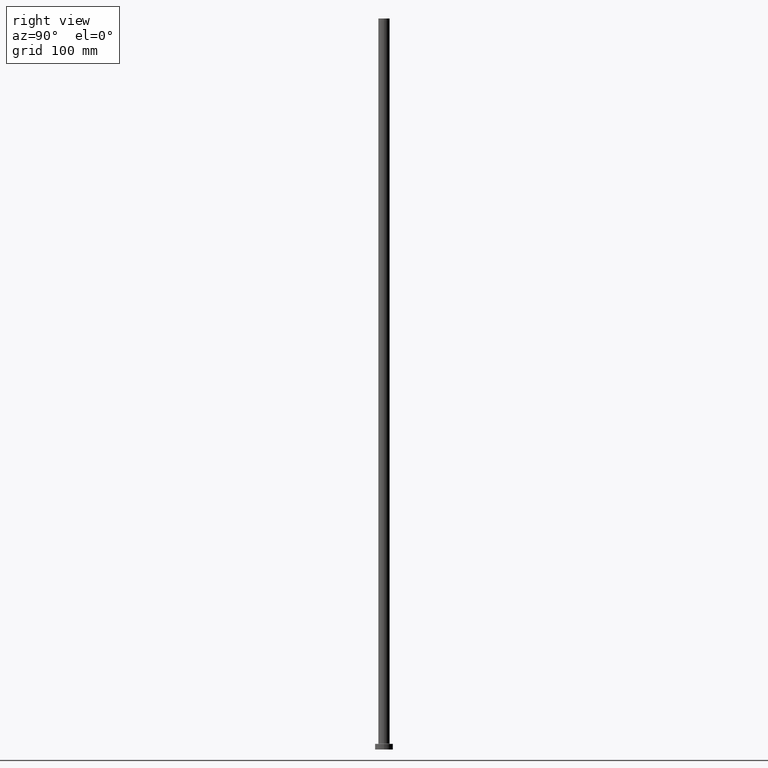
[diagram: clean part render]
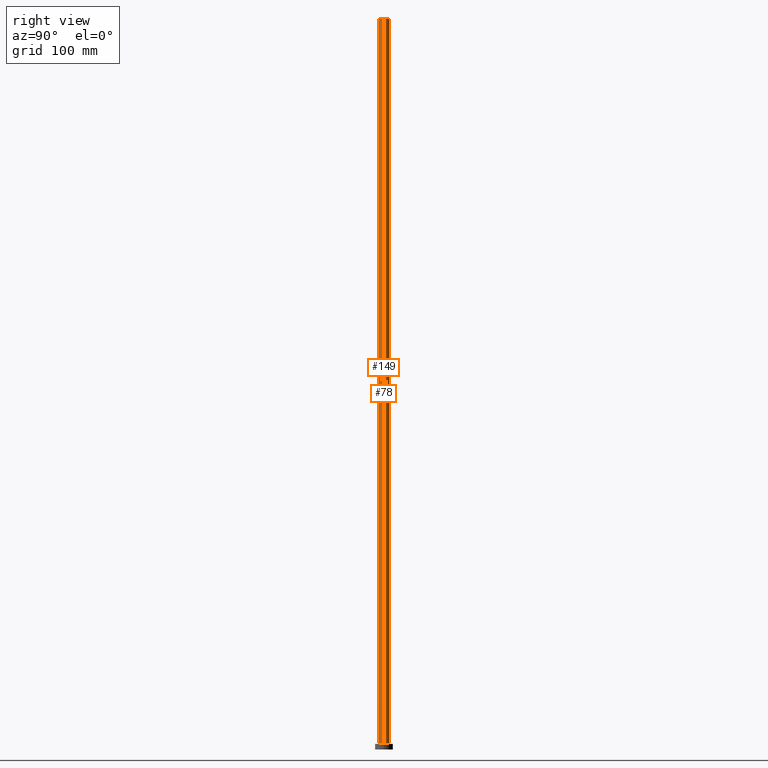
[diagram: same view with one multi-face feature highlighted, each face labeled with its STEP entity id]
A machine part, right view. The highlighted faces form ONE feature: a constant-radius fillet chain: 2 tangent blend faces with common blend radius 5 mm. The faces share edges in the B-rep.
Their STEP definitions:
[1] entity #149 (Cylinder):
#11 = EDGE_CURVE ( 'NONE', #175, #40, #57, .T. ) ;
#16 = CARTESIAN_POINT ( 'NONE',  ( 0.000000000000000000, 0.000000000000000000, 5.499999999999949374 ) ) ;
#17 = AXIS2_PLACEMENT_3D ( 'NONE', #112, #296, #397 ) ;
#40 = VERTEX_POINT ( 'NONE', #409 ) ;
#57 = CIRCLE ( 'NONE', #17, 5.000000000000000000 ) ;
#62 = LINE ( 'NONE', #346, #419 ) ;
#84 = VERTEX_POINT ( 'NONE', #97 ) ;
#96 = DIRECTION ( 'NONE',  ( -0.000000000000000000, -0.000000000000000000, -1.000000000000000000 ) ) ;
#97 = CARTESIAN_POINT ( 'NONE',  ( 5.000000000000000000, 6.123233995736765296E-16, 5.499999999999949374 ) ) ;
#105 = VECTOR ( 'NONE', #96, 1000.000000000000000 ) ;
#112 = CARTESIAN_POINT ( 'NONE',  ( 0.000000000000000000, 0.000000000000000000, 650.0000000000000000 ) ) ;
#114 = ORIENTED_EDGE ( 'NONE', *, *, #392, .F. ) ;
#126 = DIRECTION ( 'NONE',  ( -1.000000000000000000, 0.000000000000000000, 0.000000000000000000 ) ) ;
#127 = FACE_OUTER_BOUND ( 'NONE', #255, .T. ) ;
#149 = ADVANCED_FACE ( 'NONE', ( #127 ), #194, .T. ) ;
#162 = DIRECTION ( 'NONE',  ( 0.000000000000000000, 0.000000000000000000, 1.000000000000000000 ) ) ;
#167 = DIRECTION ( 'NONE',  ( 1.000000000000000000, 0.000000000000000000, 0.000000000000000000 ) ) ;
#175 = VERTEX_POINT ( 'NONE', #301 ) ;
#176 = EDGE_CURVE ( 'NONE', #175, #309, #269, .T. ) ;
#194 = CYLINDRICAL_SURFACE ( 'NONE', #202, 5.000000000000000000 ) ;
#202 = AXIS2_PLACEMENT_3D ( 'NONE', #411, #446, #126 ) ;
#248 = ORIENTED_EDGE ( 'NONE', *, *, #11, .F. ) ;
#255 = EDGE_LOOP ( 'NONE', ( #114, #248, #428, #355 ) ) ;
#269 = LINE ( 'NONE', #412, #105 ) ;
#296 = DIRECTION ( 'NONE',  ( 0.000000000000000000, 0.000000000000000000, 1.000000000000000000 ) ) ;
#301 = CARTESIAN_POINT ( 'NONE',  ( -5.000000000000000000, 0.000000000000000000, 650.0000000000000000 ) ) ;
#309 = VERTEX_POINT ( 'NONE', #410 ) ;
#324 = EDGE_CURVE ( 'NONE', #309, #84, #345, .T. ) ;
#330 = AXIS2_PLACEMENT_3D ( 'NONE', #16, #162, #167 ) ;
#345 = CIRCLE ( 'NONE', #330, 5.000000000000000000 ) ;
#346 = CARTESIAN_POINT ( 'NONE',  ( 5.000000000000000000, 6.123233995736765296E-16, 650.0000000000000000 ) ) ;
#355 = ORIENTED_EDGE ( 'NONE', *, *, #324, .T. ) ;
#386 = DIRECTION ( 'NONE',  ( -0.000000000000000000, -0.000000000000000000, -1.000000000000000000 ) ) ;
#392 = EDGE_CURVE ( 'NONE', #40, #84, #62, .T. ) ;
#397 = DIRECTION ( 'NONE',  ( 1.000000000000000000, 0.000000000000000000, 0.000000000000000000 ) ) ;
#409 = CARTESIAN_POINT ( 'NONE',  ( 5.000000000000000000, 6.123233995736765296E-16, 650.0000000000000000 ) ) ;
#410 = CARTESIAN_POINT ( 'NONE',  ( -5.000000000000000000, 0.000000000000000000, 5.499999999999949374 ) ) ;
#411 = CARTESIAN_POINT ( 'NONE',  ( 0.000000000000000000, 0.000000000000000000, 650.0000000000000000 ) ) ;
#412 = CARTESIAN_POINT ( 'NONE',  ( -5.000000000000000000, 0.000000000000000000, 650.0000000000000000 ) ) ;
#419 = VECTOR ( 'NONE', #386, 1000.000000000000000 ) ;
#428 = ORIENTED_EDGE ( 'NONE', *, *, #176, .T. ) ;
#446 = DIRECTION ( 'NONE',  ( -0.000000000000000000, -0.000000000000000000, -1.000000000000000000 ) ) ;
[2] entity #78 (Cylinder):
#35 = AXIS2_PLACEMENT_3D ( 'NONE', #208, #352, #388 ) ;
#40 = VERTEX_POINT ( 'NONE', #409 ) ;
#47 = DIRECTION ( 'NONE',  ( 1.000000000000000000, 0.000000000000000000, 0.000000000000000000 ) ) ;
#56 = EDGE_CURVE ( 'NONE', #40, #175, #189, .T. ) ;
#59 = DIRECTION ( 'NONE',  ( -0.000000000000000000, -0.000000000000000000, -1.000000000000000000 ) ) ;
#62 = LINE ( 'NONE', #346, #419 ) ;
#78 = ADVANCED_FACE ( 'NONE', ( #230 ), #338, .T. ) ;
#84 = VERTEX_POINT ( 'NONE', #97 ) ;
#96 = DIRECTION ( 'NONE',  ( -0.000000000000000000, -0.000000000000000000, -1.000000000000000000 ) ) ;
#97 = CARTESIAN_POINT ( 'NONE',  ( 5.000000000000000000, 6.123233995736765296E-16, 5.499999999999949374 ) ) ;
#104 = ORIENTED_EDGE ( 'NONE', *, *, #392, .T. ) ;
#105 = VECTOR ( 'NONE', #96, 1000.000000000000000 ) ;
#109 = ORIENTED_EDGE ( 'NONE', *, *, #176, .F. ) ;
#147 = ORIENTED_EDGE ( 'NONE', *, *, #417, .T. ) ;
#175 = VERTEX_POINT ( 'NONE', #301 ) ;
#176 = EDGE_CURVE ( 'NONE', #175, #309, #269, .T. ) ;
#189 = CIRCLE ( 'NONE', #312, 5.000000000000000000 ) ;
#208 = CARTESIAN_POINT ( 'NONE',  ( 0.000000000000000000, 0.000000000000000000, 5.499999999999949374 ) ) ;
#230 = FACE_OUTER_BOUND ( 'NONE', #456, .T. ) ;
#235 = AXIS2_PLACEMENT_3D ( 'NONE', #414, #59, #336 ) ;
#269 = LINE ( 'NONE', #412, #105 ) ;
#301 = CARTESIAN_POINT ( 'NONE',  ( -5.000000000000000000, 0.000000000000000000, 650.0000000000000000 ) ) ;
#309 = VERTEX_POINT ( 'NONE', #410 ) ;
#312 = AXIS2_PLACEMENT_3D ( 'NONE', #366, #361, #47 ) ;
#334 = ORIENTED_EDGE ( 'NONE', *, *, #56, .F. ) ;
#336 = DIRECTION ( 'NONE',  ( -1.000000000000000000, 0.000000000000000000, 0.000000000000000000 ) ) ;
#338 = CYLINDRICAL_SURFACE ( 'NONE', #235, 5.000000000000000000 ) ;
#346 = CARTESIAN_POINT ( 'NONE',  ( 5.000000000000000000, 6.123233995736765296E-16, 650.0000000000000000 ) ) ;
#352 = DIRECTION ( 'NONE',  ( 0.000000000000000000, 0.000000000000000000, 1.000000000000000000 ) ) ;
#361 = DIRECTION ( 'NONE',  ( 0.000000000000000000, 0.000000000000000000, 1.000000000000000000 ) ) ;
#366 = CARTESIAN_POINT ( 'NONE',  ( 0.000000000000000000, 0.000000000000000000, 650.0000000000000000 ) ) ;
#386 = DIRECTION ( 'NONE',  ( -0.000000000000000000, -0.000000000000000000, -1.000000000000000000 ) ) ;
#388 = DIRECTION ( 'NONE',  ( 1.000000000000000000, 0.000000000000000000, 0.000000000000000000 ) ) ;
#392 = EDGE_CURVE ( 'NONE', #40, #84, #62, .T. ) ;
#409 = CARTESIAN_POINT ( 'NONE',  ( 5.000000000000000000, 6.123233995736765296E-16, 650.0000000000000000 ) ) ;
#410 = CARTESIAN_POINT ( 'NONE',  ( -5.000000000000000000, 0.000000000000000000, 5.499999999999949374 ) ) ;
#412 = CARTESIAN_POINT ( 'NONE',  ( -5.000000000000000000, 0.000000000000000000, 650.0000000000000000 ) ) ;
#414 = CARTESIAN_POINT ( 'NONE',  ( 0.000000000000000000, 0.000000000000000000, 650.0000000000000000 ) ) ;
#417 = EDGE_CURVE ( 'NONE', #84, #309, #434, .T. ) ;
#419 = VECTOR ( 'NONE', #386, 1000.000000000000000 ) ;
#434 = CIRCLE ( 'NONE', #35, 5.000000000000000000 ) ;
#456 = EDGE_LOOP ( 'NONE', ( #334, #104, #147, #109 ) ) ;